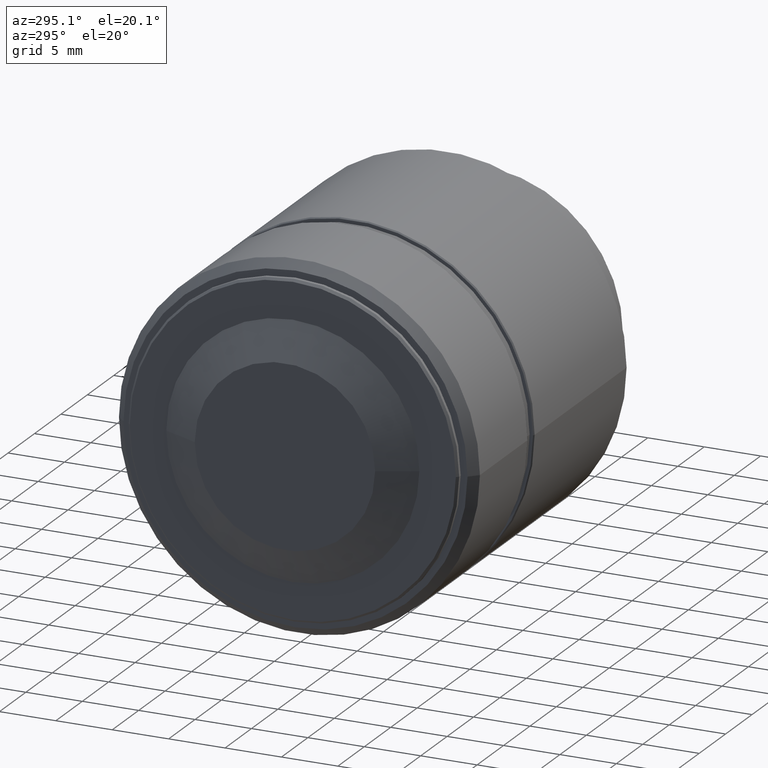
[diagram: clean part render]
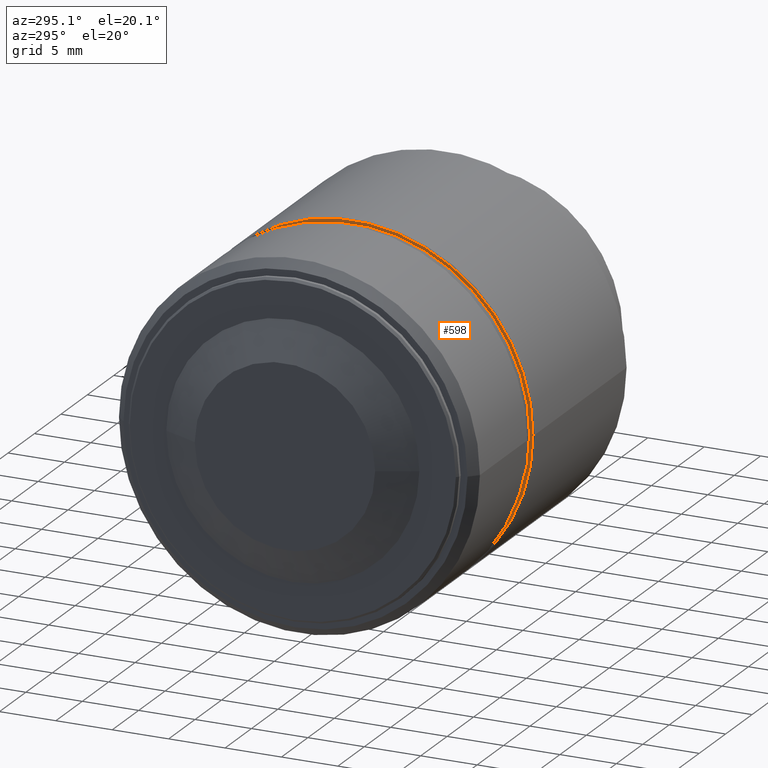
[diagram: same view with one face highlighted and labeled with its STEP entity id]
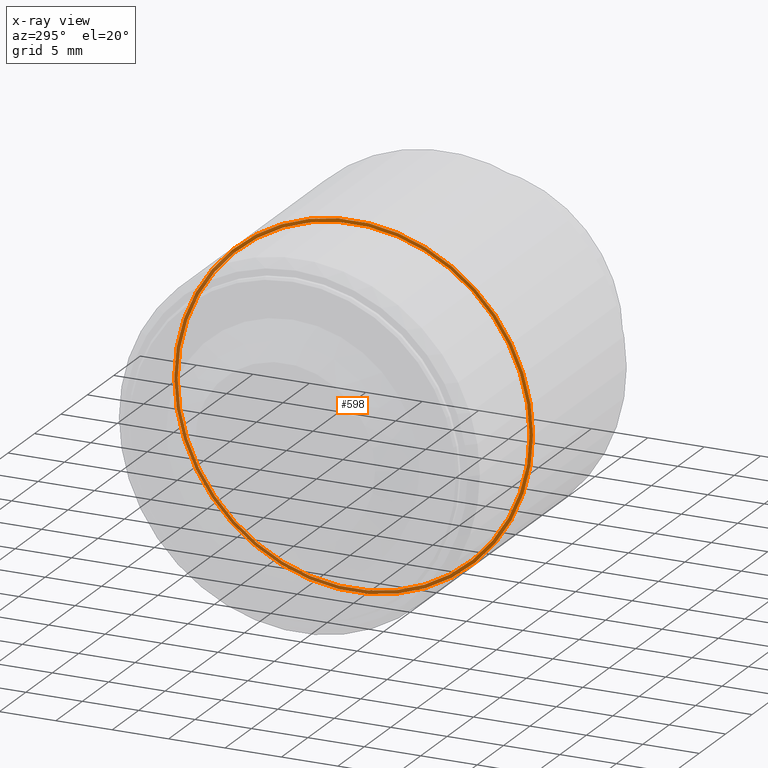
[diagram: x-ray of the same camera — body ghosted, the highlighted face saturated]
A machine part, auxiliary view. The second image highlights one B-rep face of the part: STEP entity #598.
The next image is the same camera in x-ray: the body ghosted, the highlighted face saturated — about 49% of this face is hidden behind the body in this view.
In plain terms, the highlighted planar face has unit normal (1, 0, 0).
Its self-contained STEP definition (entity closure, byte-faithful):
#11 = CARTESIAN_POINT ( 'NONE',  ( 25.00000000000000000, 0.000000000000000000, 0.000000000000000000 ) ) ;
#52 = ORIENTED_EDGE ( 'NONE', *, *, #998, .F. ) ;
#53 = CARTESIAN_POINT ( 'NONE',  ( 25.00000000000000000, -15.89999978895130184, 0.000000000000000000 ) ) ;
#54 = CARTESIAN_POINT ( 'NONE',  ( 25.00000000000000000, 15.89999978895130184, -1.947188384798290128E-15 ) ) ;
#66 = EDGE_LOOP ( 'NONE', ( #1233, #52 ) ) ;
#69 = CARTESIAN_POINT ( 'NONE',  ( 25.00000000000000000, 0.000000000000000000, 0.000000000000000000 ) ) ;
#101 = DIRECTION ( 'NONE',  ( 0.000000000000000000, 1.000000000000000000, 0.000000000000000000 ) ) ;
#120 = AXIS2_PLACEMENT_3D ( 'NONE', #408, #517, #422 ) ;
#125 = VERTEX_POINT ( 'NONE', #464 ) ;
#156 = CIRCLE ( 'NONE', #481, 15.59999978895129935 ) ;
#157 = CARTESIAN_POINT ( 'NONE',  ( 25.00000000000000000, 0.000000000000000000, 0.000000000000000000 ) ) ;
#175 = AXIS2_PLACEMENT_3D ( 'NONE', #69, #551, #1140 ) ;
#250 = FACE_OUTER_BOUND ( 'NONE', #66, .T. ) ;
#294 = CIRCLE ( 'NONE', #120, 15.89999978895130184 ) ;
#335 = VERTEX_POINT ( 'NONE', #53 ) ;
#408 = CARTESIAN_POINT ( 'NONE',  ( 25.00000000000000000, 0.000000000000000000, 0.000000000000000000 ) ) ;
#422 = DIRECTION ( 'NONE',  ( 0.000000000000000000, 1.000000000000000000, 0.000000000000000000 ) ) ;
#447 = PLANE ( 'NONE',  #478 ) ;
#452 = FACE_BOUND ( 'NONE', #617, .T. ) ;
#464 = CARTESIAN_POINT ( 'NONE',  ( 25.00000000000000000, 15.59999978895129935, -1.910448980823860197E-15 ) ) ;
#478 = AXIS2_PLACEMENT_3D ( 'NONE', #751, #847, #664 ) ;
#481 = AXIS2_PLACEMENT_3D ( 'NONE', #157, #1058, #571 ) ;
#483 = AXIS2_PLACEMENT_3D ( 'NONE', #11, #774, #101 ) ;
#517 = DIRECTION ( 'NONE',  ( 1.000000000000000000, 0.000000000000000000, 0.000000000000000000 ) ) ;
#519 = ORIENTED_EDGE ( 'NONE', *, *, #1180, .T. ) ;
#551 = DIRECTION ( 'NONE',  ( 1.000000000000000000, 0.000000000000000000, 0.000000000000000000 ) ) ;
#570 = VERTEX_POINT ( 'NONE', #681 ) ;
#571 = DIRECTION ( 'NONE',  ( 0.000000000000000000, 1.000000000000000000, 0.000000000000000000 ) ) ;
#598 = ADVANCED_FACE ( 'NONE', ( #250, #452 ), #447, .F. ) ;
#617 = EDGE_LOOP ( 'NONE', ( #519, #666 ) ) ;
#631 = EDGE_CURVE ( 'NONE', #335, #936, #909, .T. ) ;
#664 = DIRECTION ( 'NONE',  ( 0.000000000000000000, 1.000000000000000000, 0.000000000000000000 ) ) ;
#666 = ORIENTED_EDGE ( 'NONE', *, *, #1229, .T. ) ;
#681 = CARTESIAN_POINT ( 'NONE',  ( 25.00000000000000000, -15.59999978895129935, 0.000000000000000000 ) ) ;
#751 = CARTESIAN_POINT ( 'NONE',  ( 25.00000000000000000, 15.74999978895130148, 0.000000000000000000 ) ) ;
#774 = DIRECTION ( 'NONE',  ( 1.000000000000000000, 0.000000000000000000, 0.000000000000000000 ) ) ;
#832 = CIRCLE ( 'NONE', #483, 15.59999978895129935 ) ;
#847 = DIRECTION ( 'NONE',  ( 1.000000000000000000, 0.000000000000000000, 0.000000000000000000 ) ) ;
#909 = CIRCLE ( 'NONE', #175, 15.89999978895130184 ) ;
#936 = VERTEX_POINT ( 'NONE', #54 ) ;
#998 = EDGE_CURVE ( 'NONE', #936, #335, #294, .T. ) ;
#1058 = DIRECTION ( 'NONE',  ( 1.000000000000000000, 0.000000000000000000, 0.000000000000000000 ) ) ;
#1140 = DIRECTION ( 'NONE',  ( 0.000000000000000000, 1.000000000000000000, 0.000000000000000000 ) ) ;
#1180 = EDGE_CURVE ( 'NONE', #570, #125, #156, .T. ) ;
#1229 = EDGE_CURVE ( 'NONE', #125, #570, #832, .T. ) ;
#1233 = ORIENTED_EDGE ( 'NONE', *, *, #631, .F. ) ;